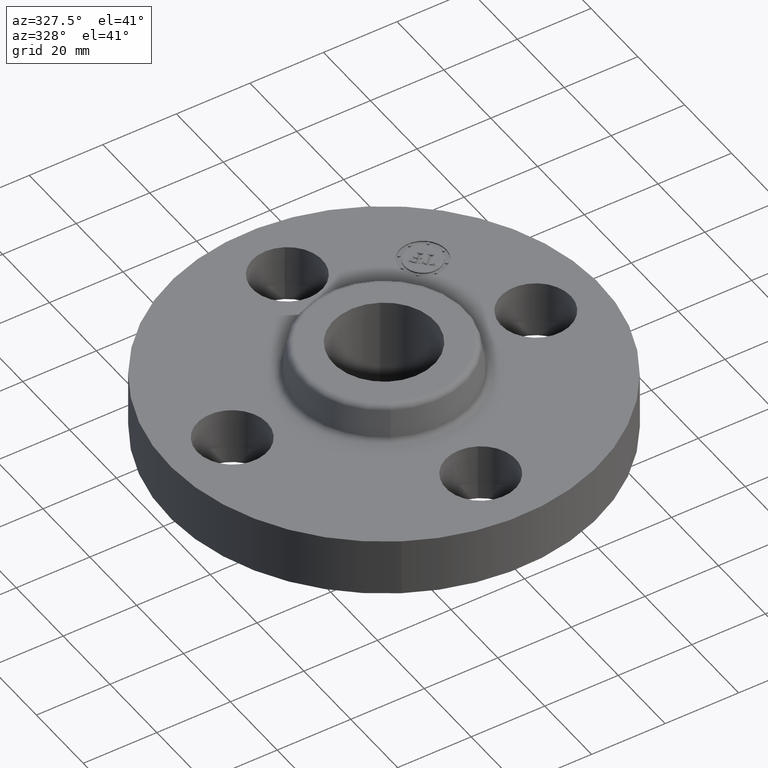
[diagram: clean part render]
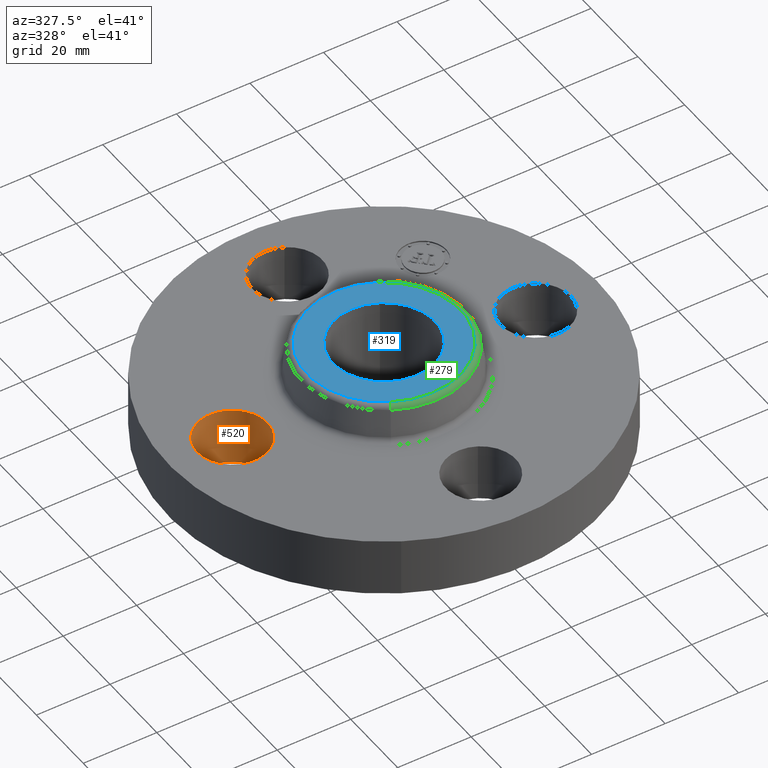
[diagram: same view with three faces highlighted in distinct colors, each labeled with its STEP entity id]
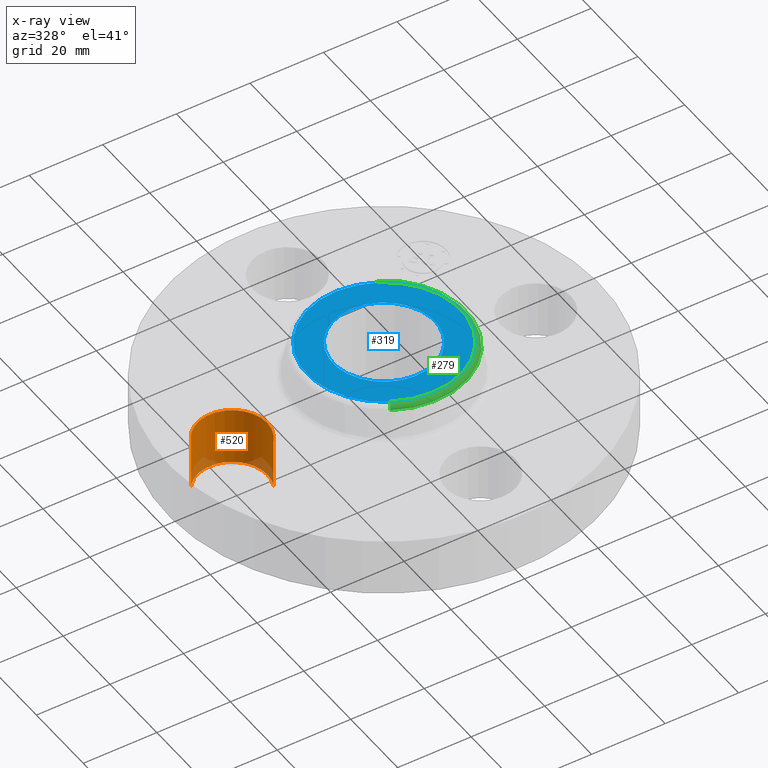
[diagram: x-ray of the same camera — body ghosted, the three highlighted faces saturated]
A machine part, auxiliary view with three faces highlighted in distinct colors.
The next image is the same camera in x-ray (body ghosted, the three faces saturated) — at least one of them is partly hidden behind the body in this view.
Their STEP definitions:

[orange] entity #520 — the highlighted cylindrical surface (partial cylindrical patch) has radius 9.525 mm, axis along (-0, 0, -1).
#409=AXIS2_PLACEMENT_3D('Circle Axis2P3D',#407,#408,$) ;
#481=AXIS2_PLACEMENT_3D('Cylinder Axis2P3D',#478,#479,#480) ;
#511=AXIS2_PLACEMENT_3D('Circle Axis2P3D',#509,#510,$) ;
#402=CARTESIAN_POINT('Vertex',(-1.2959065393,-0.179784576977,0.)) ;
#404=CARTESIAN_POINT('Vertex',(-1.95409346072,0.179784576977,0.)) ;
#407=CARTESIAN_POINT('Axis2P3D Location',(-1.62500000001,-2.09805925913E-016,0.)) ;
#478=CARTESIAN_POINT('Axis2P3D Location',(-1.62500000001,-1.99005104862E-016,0.616062992128)) ;
#483=CARTESIAN_POINT('Line Origine',(-1.2959065393,-0.179784576977,0.310000000001)) ;
#487=CARTESIAN_POINT('Vertex',(-1.2959065393,-0.179784576977,0.620000000002)) ;
#490=CARTESIAN_POINT('Line Origine',(-1.95409346072,0.179784576977,0.310000000001)) ;
#494=CARTESIAN_POINT('Vertex',(-1.95409346072,0.179784576977,0.620000000002)) ;
#509=CARTESIAN_POINT('Axis2P3D Location',(-1.62500000001,-1.99005104862E-016,0.620000000002)) ;
#408=DIRECTION('Axis2P3D Direction',(0.,0.,-0.0393700787402)) ;
#479=DIRECTION('Axis2P3D Direction',(-0.,0.,-0.0393700787402)) ;
#480=DIRECTION('Axis2P3D XDirection',(-0.0345504945626,0.0188750212049,0.)) ;
#484=DIRECTION('Vector Direction',(0.,0.,-0.0393700787402)) ;
#491=DIRECTION('Vector Direction',(0.,0.,-0.0393700787402)) ;
#510=DIRECTION('Axis2P3D Direction',(-0.,0.,-0.0393700787402)) ;
#485=VECTOR('Line Direction',#484,0.0393700787402) ;
#492=VECTOR('Line Direction',#491,0.0393700787402) ;
#515=ORIENTED_EDGE('',*,*,#496,.F.) ;
#516=ORIENTED_EDGE('',*,*,#411,.T.) ;
#517=ORIENTED_EDGE('',*,*,#489,.T.) ;
#518=ORIENTED_EDGE('',*,*,#513,.F.) ;
#520=ADVANCED_FACE('PartBody',(#519),#482,.F.) ;
#410=CIRCLE('generated circle',#409,0.375000000002) ;
#512=CIRCLE('generated circle',#511,0.375000000002) ;
#482=CYLINDRICAL_SURFACE('generated cylinder',#481,0.375000000002) ;
#411=EDGE_CURVE('',#405,#403,#410,.T.) ;
#489=EDGE_CURVE('',#403,#488,#486,.F.) ;
#496=EDGE_CURVE('',#405,#495,#493,.F.) ;
#513=EDGE_CURVE('',#495,#488,#512,.T.) ;
#514=EDGE_LOOP('',(#515,#516,#517,#518)) ;
#519=FACE_OUTER_BOUND('',#514,.T.) ;
#486=LINE('Line',#483,#485) ;
#493=LINE('Line',#490,#492) ;
#403=VERTEX_POINT('',#402) ;
#405=VERTEX_POINT('',#404) ;
#488=VERTEX_POINT('',#487) ;
#495=VERTEX_POINT('',#494) ;

[blue] entity #319 — the highlighted planar face has unit normal (0, 0, -1).
#263=AXIS2_PLACEMENT_3D('Circle Axis2P3D',#261,#262,$) ;
#282=AXIS2_PLACEMENT_3D('Circle Axis2P3D',#280,#281,$) ;
#295=AXIS2_PLACEMENT_3D('Plane Axis2P3D',#292,#293,#294) ;
#303=AXIS2_PLACEMENT_3D('Circle Axis2P3D',#301,#302,$) ;
#312=AXIS2_PLACEMENT_3D('Circle Axis2P3D',#310,#311,$) ;
#258=CARTESIAN_POINT('Vertex',(0.394399308808,0.721943092224,1.)) ;
#261=CARTESIAN_POINT('Axis2P3D Location',(0.,0.,1.)) ;
#265=CARTESIAN_POINT('Vertex',(-0.394399308808,-0.721943092224,1.)) ;
#280=CARTESIAN_POINT('Axis2P3D Location',(0.,0.,1.)) ;
#292=CARTESIAN_POINT('Axis2P3D Location',(0.,0.822649769463,1.)) ;
#301=CARTESIAN_POINT('Axis2P3D Location',(0.,0.,1.)) ;
#305=CARTESIAN_POINT('Vertex',(-0.26128691854,-0.478282496232,1.)) ;
#307=CARTESIAN_POINT('Vertex',(0.26128691854,0.478282496232,1.)) ;
#310=CARTESIAN_POINT('Axis2P3D Location',(0.,0.,1.)) ;
#262=DIRECTION('Axis2P3D Direction',(0.,0.,-0.0393700787402)) ;
#281=DIRECTION('Axis2P3D Direction',(0.,0.,-0.0393700787402)) ;
#293=DIRECTION('Axis2P3D Direction',(0.,0.,-0.0393700787402)) ;
#294=DIRECTION('Axis2P3D XDirection',(0.0393700787402,0.,0.)) ;
#302=DIRECTION('Axis2P3D Direction',(0.,0.,-0.0393700787402)) ;
#311=DIRECTION('Axis2P3D Direction',(0.,0.,-0.0393700787402)) ;
#298=ORIENTED_EDGE('',*,*,#267,.F.) ;
#299=ORIENTED_EDGE('',*,*,#284,.F.) ;
#316=ORIENTED_EDGE('',*,*,#309,.T.) ;
#317=ORIENTED_EDGE('',*,*,#314,.T.) ;
#318=FACE_BOUND('',#315,.T.) ;
#319=ADVANCED_FACE('PartBody',(#300,#318),#296,.F.) ;
#264=CIRCLE('generated circle',#263,0.822649769463) ;
#283=CIRCLE('generated circle',#282,0.822649769463) ;
#304=CIRCLE('generated circle',#303,0.545000000002) ;
#313=CIRCLE('generated circle',#312,0.545000000002) ;
#267=EDGE_CURVE('',#259,#266,#264,.T.) ;
#284=EDGE_CURVE('',#266,#259,#283,.T.) ;
#309=EDGE_CURVE('',#306,#308,#304,.T.) ;
#314=EDGE_CURVE('',#308,#306,#313,.T.) ;
#297=EDGE_LOOP('',(#298,#299)) ;
#315=EDGE_LOOP('',(#316,#317)) ;
#300=FACE_OUTER_BOUND('',#297,.T.) ;
#296=PLANE('',#295) ;
#259=VERTEX_POINT('',#258) ;
#266=VERTEX_POINT('',#265) ;
#306=VERTEX_POINT('',#305) ;
#308=VERTEX_POINT('',#307) ;

[green] entity #279 — the highlighted toroidal blend (fillet) surface has major radius 20.8953 mm and minor (blend) radius 1.524 mm.
#220=AXIS2_PLACEMENT_3D('Circle Axis2P3D',#218,#219,$) ;
#252=AXIS2_PLACEMENT_3D('Torus Axis2P3D',#249,#250,#251) ;
#256=AXIS2_PLACEMENT_3D('Circle Axis2P3D',#254,#255,$) ;
#263=AXIS2_PLACEMENT_3D('Circle Axis2P3D',#261,#262,$) ;
#270=AXIS2_PLACEMENT_3D('Circle Axis2P3D',#268,#269,$) ;
#215=CARTESIAN_POINT('Vertex',(0.422727828052,0.773798098876,0.950418890664)) ;
#218=CARTESIAN_POINT('Axis2P3D Location',(0.,0.,0.950418890664)) ;
#222=CARTESIAN_POINT('Vertex',(-0.422727828052,-0.773798098876,0.950418890664)) ;
#249=CARTESIAN_POINT('Axis2P3D Location',(0.,0.,0.940000000004)) ;
#254=CARTESIAN_POINT('Axis2P3D Location',(0.394399308808,0.721943092224,0.940000000004)) ;
#258=CARTESIAN_POINT('Vertex',(0.394399308808,0.721943092224,1.)) ;
#261=CARTESIAN_POINT('Axis2P3D Location',(0.,0.,1.)) ;
#265=CARTESIAN_POINT('Vertex',(-0.394399308808,-0.721943092224,1.)) ;
#268=CARTESIAN_POINT('Axis2P3D Location',(-0.394399308808,-0.721943092224,0.940000000004)) ;
#219=DIRECTION('Axis2P3D Direction',(0.,0.,-0.0393700787402)) ;
#250=DIRECTION('Axis2P3D Direction',(0.,0.,-0.0393700787402)) ;
#251=DIRECTION('Axis2P3D XDirection',(-0.0188750212049,-0.0345504945626,0.)) ;
#255=DIRECTION('Axis2P3D Direction',(-0.0345504945626,0.0188750212049,0.)) ;
#262=DIRECTION('Axis2P3D Direction',(0.,0.,-0.0393700787402)) ;
#269=DIRECTION('Axis2P3D Direction',(0.0345504945626,-0.0188750212049,0.)) ;
#274=ORIENTED_EDGE('',*,*,#224,.F.) ;
#275=ORIENTED_EDGE('',*,*,#260,.T.) ;
#276=ORIENTED_EDGE('',*,*,#267,.T.) ;
#277=ORIENTED_EDGE('',*,*,#272,.F.) ;
#279=ADVANCED_FACE('PartBody',(#278),#253,.T.) ;
#221=CIRCLE('generated circle',#220,0.881738234644) ;
#257=CIRCLE('generated circle',#256,0.0600000000002) ;
#264=CIRCLE('generated circle',#263,0.822649769463) ;
#271=CIRCLE('generated circle',#270,0.0600000000002) ;
#253=TOROIDAL_SURFACE('homeo Torus',#252,0.822649769463,0.0600000000002) ;
#224=EDGE_CURVE('',#216,#223,#221,.T.) ;
#260=EDGE_CURVE('',#216,#259,#257,.F.) ;
#267=EDGE_CURVE('',#259,#266,#264,.T.) ;
#272=EDGE_CURVE('',#223,#266,#271,.F.) ;
#273=EDGE_LOOP('',(#274,#275,#276,#277)) ;
#278=FACE_OUTER_BOUND('',#273,.T.) ;
#216=VERTEX_POINT('',#215) ;
#223=VERTEX_POINT('',#222) ;
#259=VERTEX_POINT('',#258) ;
#266=VERTEX_POINT('',#265) ;